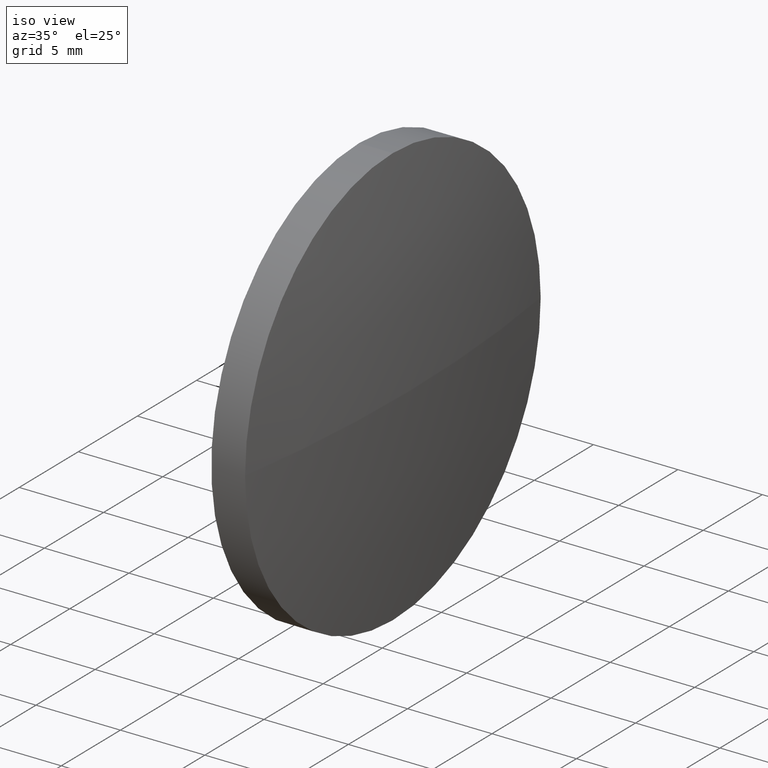
[diagram: clean part render]
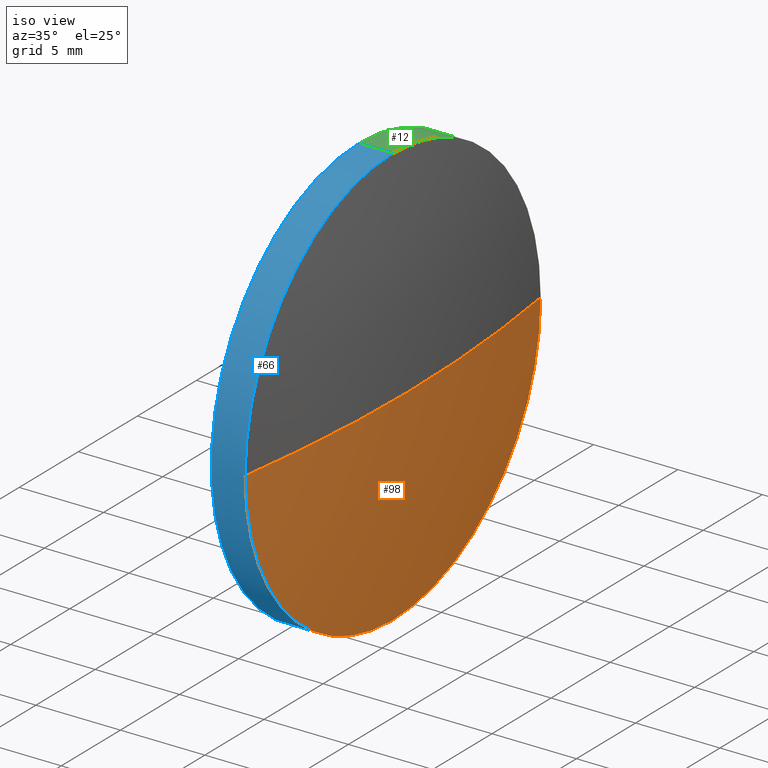
[diagram: same view with three faces highlighted in distinct colors, each labeled with its STEP entity id]
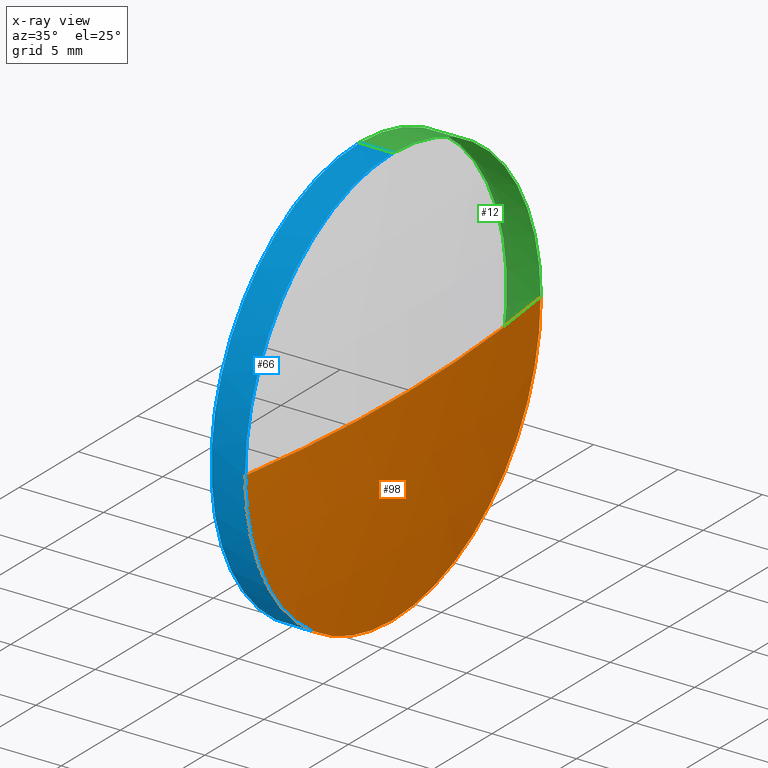
[diagram: x-ray of the same camera — body ghosted, the three highlighted faces saturated]
A machine part, iso view with three faces highlighted in distinct colors.
The next image is the same camera in x-ray (body ghosted, the three faces saturated) — at least one of them is partly hidden behind the body in this view.
Their STEP definitions:

[orange] entity #98 — the highlighted spherical surface has radius 82.7118 mm.
#1 = CARTESIAN_POINT ( 'NONE',  ( 579.2456314118285300, 209.4790640844908600, 0.0000000000000000000 ) ) ;
#4 = CARTESIAN_POINT ( 'NONE',  ( 580.1956314118284600, 196.9790640844907400, 0.0000000000000000000 ) ) ;
#5 = DIRECTION ( 'NONE',  ( 0.0000000000000000000, 1.000000000000000000, 0.0000000000000000000 ) ) ;
#7 = AXIS2_PLACEMENT_3D ( 'NONE', #159, #76, #172 ) ;
#8 = CIRCLE ( 'NONE', #183, 12.49999999999998400 ) ;
#14 = SPHERICAL_SURFACE ( 'NONE', #114, 82.71184210526288900 ) ;
#21 = VERTEX_POINT ( 'NONE', #1 ) ;
#24 = EDGE_CURVE ( 'NONE', #56, #21, #28, .T. ) ;
#28 = CIRCLE ( 'NONE', #7, 82.71184210526288900 ) ;
#32 = CARTESIAN_POINT ( 'NONE',  ( 579.2456314118285300, 184.4790640844908300, -1.530808498934181500E-015 ) ) ;
#42 = CIRCLE ( 'NONE', #145, 12.49999999999998400 ) ;
#44 = DIRECTION ( 'NONE',  ( 0.0000000000000000000, 0.0000000000000000000, 1.000000000000000000 ) ) ;
#53 = EDGE_CURVE ( 'NONE', #165, #75, #8, .T. ) ;
#56 = VERTEX_POINT ( 'NONE', #4 ) ;
#57 = ORIENTED_EDGE ( 'NONE', *, *, #106, .T. ) ;
#59 = CARTESIAN_POINT ( 'NONE',  ( 579.2456314118285300, 196.9790640844909100, 0.0000000000000000000 ) ) ;
#68 = CARTESIAN_POINT ( 'NONE',  ( 579.2456314118285300, 196.9790640844909100, 0.0000000000000000000 ) ) ;
#75 = VERTEX_POINT ( 'NONE', #32 ) ;
#76 = DIRECTION ( 'NONE',  ( -0.0000000000000000000, 0.0000000000000000000, 1.000000000000000000 ) ) ;
#78 = DIRECTION ( 'NONE',  ( -0.0000000000000000000, 0.0000000000000000000, -1.000000000000000000 ) ) ;
#98 = ADVANCED_FACE ( 'NONE', ( #164 ), #14, .T. ) ;
#99 = ORIENTED_EDGE ( 'NONE', *, *, #126, .F. ) ;
#101 = CIRCLE ( 'NONE', #129, 82.71184210526291700 ) ;
#106 = EDGE_CURVE ( 'NONE', #56, #75, #101, .T. ) ;
#107 = EDGE_LOOP ( 'NONE', ( #116, #57, #136, #99 ) ) ;
#112 = CARTESIAN_POINT ( 'NONE',  ( 497.4837893065656000, 196.9790640844907400, 0.0000000000000000000 ) ) ;
#114 = AXIS2_PLACEMENT_3D ( 'NONE', #161, #78, #5 ) ;
#116 = ORIENTED_EDGE ( 'NONE', *, *, #24, .F. ) ;
#126 = EDGE_CURVE ( 'NONE', #21, #165, #42, .T. ) ;
#127 = DIRECTION ( 'NONE',  ( 0.0000000000000000000, 1.224646799147353200E-016, -1.000000000000000000 ) ) ;
#129 = AXIS2_PLACEMENT_3D ( 'NONE', #112, #127, #152 ) ;
#134 = CARTESIAN_POINT ( 'NONE',  ( 579.2456314118285300, 196.9790640844909100, -12.49999999999998400 ) ) ;
#136 = ORIENTED_EDGE ( 'NONE', *, *, #53, .F. ) ;
#145 = AXIS2_PLACEMENT_3D ( 'NONE', #68, #182, #44 ) ;
#152 = DIRECTION ( 'NONE',  ( 0.0000000000000000000, 1.000000000000000000, 1.224646799147352700E-016 ) ) ;
#157 = DIRECTION ( 'NONE',  ( 0.0000000000000000000, 0.0000000000000000000, 1.000000000000000000 ) ) ;
#159 = CARTESIAN_POINT ( 'NONE',  ( 497.4837893065656000, 196.9790640844907400, 0.0000000000000000000 ) ) ;
#160 = DIRECTION ( 'NONE',  ( -1.000000000000000000, -0.0000000000000000000, -0.0000000000000000000 ) ) ;
#161 = CARTESIAN_POINT ( 'NONE',  ( 497.4837893065656000, 196.9790640844907400, 0.0000000000000000000 ) ) ;
#164 = FACE_OUTER_BOUND ( 'NONE', #107, .T. ) ;
#165 = VERTEX_POINT ( 'NONE', #134 ) ;
#172 = DIRECTION ( 'NONE',  ( 1.000000000000000000, 0.0000000000000000000, 0.0000000000000000000 ) ) ;
#182 = DIRECTION ( 'NONE',  ( -1.000000000000000000, -0.0000000000000000000, -0.0000000000000000000 ) ) ;
#183 = AXIS2_PLACEMENT_3D ( 'NONE', #59, #160, #157 ) ;

[blue] entity #66 — the highlighted cylindrical surface (partial cylindrical patch) has radius 12.5 mm, axis along (-1, -0, -0).
#8 = CIRCLE ( 'NONE', #183, 12.49999999999998400 ) ;
#17 = CIRCLE ( 'NONE', #27, 12.49999999999998400 ) ;
#18 = EDGE_CURVE ( 'NONE', #63, #94, #50, .T. ) ;
#20 = DIRECTION ( 'NONE',  ( 0.0000000000000000000, 0.0000000000000000000, 1.000000000000000000 ) ) ;
#27 = AXIS2_PLACEMENT_3D ( 'NONE', #121, #60, #20 ) ;
#29 = LINE ( 'NONE', #135, #80 ) ;
#30 = DIRECTION ( 'NONE',  ( 0.0000000000000000000, 0.0000000000000000000, 1.000000000000000000 ) ) ;
#32 = CARTESIAN_POINT ( 'NONE',  ( 579.2456314118285300, 184.4790640844908300, -1.530808498934181500E-015 ) ) ;
#33 = DIRECTION ( 'NONE',  ( -1.000000000000000000, -0.0000000000000000000, -0.0000000000000000000 ) ) ;
#34 = EDGE_CURVE ( 'NONE', #165, #63, #93, .T. ) ;
#38 = ORIENTED_EDGE ( 'NONE', *, *, #138, .T. ) ;
#45 = ORIENTED_EDGE ( 'NONE', *, *, #18, .F. ) ;
#47 = CARTESIAN_POINT ( 'NONE',  ( 574.8800155090675600, 196.9790640844909100, -12.49999999999998400 ) ) ;
#48 = CYLINDRICAL_SURFACE ( 'NONE', #62, 12.49999999999998400 ) ;
#50 = CIRCLE ( 'NONE', #83, 12.49999999999998400 ) ;
#51 = CARTESIAN_POINT ( 'NONE',  ( 577.2456314118285300, 196.9790640844909100, 12.49999999999998400 ) ) ;
#52 = VERTEX_POINT ( 'NONE', #140 ) ;
#53 = EDGE_CURVE ( 'NONE', #165, #75, #8, .T. ) ;
#58 = CARTESIAN_POINT ( 'NONE',  ( 577.2456314118285300, 196.9790640844909100, 0.0000000000000000000 ) ) ;
#59 = CARTESIAN_POINT ( 'NONE',  ( 579.2456314118285300, 196.9790640844909100, 0.0000000000000000000 ) ) ;
#60 = DIRECTION ( 'NONE',  ( -1.000000000000000000, -0.0000000000000000000, -0.0000000000000000000 ) ) ;
#62 = AXIS2_PLACEMENT_3D ( 'NONE', #92, #130, #117 ) ;
#63 = VERTEX_POINT ( 'NONE', #143 ) ;
#66 = ADVANCED_FACE ( 'NONE', ( #102 ), #48, .T. ) ;
#69 = ORIENTED_EDGE ( 'NONE', *, *, #74, .T. ) ;
#74 = EDGE_CURVE ( 'NONE', #75, #52, #17, .T. ) ;
#75 = VERTEX_POINT ( 'NONE', #32 ) ;
#80 = VECTOR ( 'NONE', #184, 1000.000000000000000 ) ;
#82 = VECTOR ( 'NONE', #33, 1000.000000000000000 ) ;
#83 = AXIS2_PLACEMENT_3D ( 'NONE', #58, #171, #30 ) ;
#89 = ORIENTED_EDGE ( 'NONE', *, *, #34, .F. ) ;
#92 = CARTESIAN_POINT ( 'NONE',  ( 574.8800155090675600, 196.9790640844909100, 0.0000000000000000000 ) ) ;
#93 = LINE ( 'NONE', #47, #82 ) ;
#94 = VERTEX_POINT ( 'NONE', #51 ) ;
#102 = FACE_OUTER_BOUND ( 'NONE', #128, .T. ) ;
#117 = DIRECTION ( 'NONE',  ( 0.0000000000000000000, 0.0000000000000000000, 1.000000000000000000 ) ) ;
#119 = ORIENTED_EDGE ( 'NONE', *, *, #53, .T. ) ;
#121 = CARTESIAN_POINT ( 'NONE',  ( 579.2456314118285300, 196.9790640844909100, 0.0000000000000000000 ) ) ;
#128 = EDGE_LOOP ( 'NONE', ( #89, #119, #69, #38, #45 ) ) ;
#130 = DIRECTION ( 'NONE',  ( -1.000000000000000000, -0.0000000000000000000, -0.0000000000000000000 ) ) ;
#134 = CARTESIAN_POINT ( 'NONE',  ( 579.2456314118285300, 196.9790640844909100, -12.49999999999998400 ) ) ;
#135 = CARTESIAN_POINT ( 'NONE',  ( 574.8800155090675600, 196.9790640844909100, 12.49999999999998400 ) ) ;
#138 = EDGE_CURVE ( 'NONE', #52, #94, #29, .T. ) ;
#140 = CARTESIAN_POINT ( 'NONE',  ( 579.2456314118285300, 196.9790640844909100, 12.49999999999998400 ) ) ;
#143 = CARTESIAN_POINT ( 'NONE',  ( 577.2456314118285300, 196.9790640844909100, -12.49999999999998400 ) ) ;
#157 = DIRECTION ( 'NONE',  ( 0.0000000000000000000, 0.0000000000000000000, 1.000000000000000000 ) ) ;
#160 = DIRECTION ( 'NONE',  ( -1.000000000000000000, -0.0000000000000000000, -0.0000000000000000000 ) ) ;
#165 = VERTEX_POINT ( 'NONE', #134 ) ;
#171 = DIRECTION ( 'NONE',  ( -1.000000000000000000, -0.0000000000000000000, -0.0000000000000000000 ) ) ;
#183 = AXIS2_PLACEMENT_3D ( 'NONE', #59, #160, #157 ) ;
#184 = DIRECTION ( 'NONE',  ( -1.000000000000000000, -0.0000000000000000000, -0.0000000000000000000 ) ) ;

[green] entity #12 — the highlighted cylindrical surface (partial cylindrical patch) has radius 12.5 mm, axis along (-1, -0, -0).
#1 = CARTESIAN_POINT ( 'NONE',  ( 579.2456314118285300, 209.4790640844908600, 0.0000000000000000000 ) ) ;
#10 = EDGE_CURVE ( 'NONE', #94, #63, #162, .T. ) ;
#11 = CARTESIAN_POINT ( 'NONE',  ( 579.2456314118285300, 196.9790640844909100, 0.0000000000000000000 ) ) ;
#12 = ADVANCED_FACE ( 'NONE', ( #125 ), #122, .T. ) ;
#16 = AXIS2_PLACEMENT_3D ( 'NONE', #174, #73, #103 ) ;
#21 = VERTEX_POINT ( 'NONE', #1 ) ;
#25 = AXIS2_PLACEMENT_3D ( 'NONE', #11, #179, #85 ) ;
#29 = LINE ( 'NONE', #135, #80 ) ;
#33 = DIRECTION ( 'NONE',  ( -1.000000000000000000, -0.0000000000000000000, -0.0000000000000000000 ) ) ;
#34 = EDGE_CURVE ( 'NONE', #165, #63, #93, .T. ) ;
#42 = CIRCLE ( 'NONE', #145, 12.49999999999998400 ) ;
#44 = DIRECTION ( 'NONE',  ( 0.0000000000000000000, 0.0000000000000000000, 1.000000000000000000 ) ) ;
#47 = CARTESIAN_POINT ( 'NONE',  ( 574.8800155090675600, 196.9790640844909100, -12.49999999999998400 ) ) ;
#51 = CARTESIAN_POINT ( 'NONE',  ( 577.2456314118285300, 196.9790640844909100, 12.49999999999998400 ) ) ;
#52 = VERTEX_POINT ( 'NONE', #140 ) ;
#63 = VERTEX_POINT ( 'NONE', #143 ) ;
#68 = CARTESIAN_POINT ( 'NONE',  ( 579.2456314118285300, 196.9790640844909100, 0.0000000000000000000 ) ) ;
#72 = DIRECTION ( 'NONE',  ( -1.000000000000000000, -0.0000000000000000000, -0.0000000000000000000 ) ) ;
#73 = DIRECTION ( 'NONE',  ( -1.000000000000000000, -0.0000000000000000000, -0.0000000000000000000 ) ) ;
#77 = CARTESIAN_POINT ( 'NONE',  ( 577.2456314118285300, 196.9790640844909100, 0.0000000000000000000 ) ) ;
#80 = VECTOR ( 'NONE', #184, 1000.000000000000000 ) ;
#81 = CIRCLE ( 'NONE', #25, 12.49999999999998400 ) ;
#82 = VECTOR ( 'NONE', #33, 1000.000000000000000 ) ;
#84 = ORIENTED_EDGE ( 'NONE', *, *, #138, .F. ) ;
#85 = DIRECTION ( 'NONE',  ( 0.0000000000000000000, 0.0000000000000000000, 1.000000000000000000 ) ) ;
#93 = LINE ( 'NONE', #47, #82 ) ;
#94 = VERTEX_POINT ( 'NONE', #51 ) ;
#103 = DIRECTION ( 'NONE',  ( 0.0000000000000000000, 0.0000000000000000000, 1.000000000000000000 ) ) ;
#109 = ORIENTED_EDGE ( 'NONE', *, *, #126, .T. ) ;
#118 = DIRECTION ( 'NONE',  ( 0.0000000000000000000, 0.0000000000000000000, 1.000000000000000000 ) ) ;
#122 = CYLINDRICAL_SURFACE ( 'NONE', #16, 12.49999999999998400 ) ;
#125 = FACE_OUTER_BOUND ( 'NONE', #148, .T. ) ;
#126 = EDGE_CURVE ( 'NONE', #21, #165, #42, .T. ) ;
#134 = CARTESIAN_POINT ( 'NONE',  ( 579.2456314118285300, 196.9790640844909100, -12.49999999999998400 ) ) ;
#135 = CARTESIAN_POINT ( 'NONE',  ( 574.8800155090675600, 196.9790640844909100, 12.49999999999998400 ) ) ;
#138 = EDGE_CURVE ( 'NONE', #52, #94, #29, .T. ) ;
#140 = CARTESIAN_POINT ( 'NONE',  ( 579.2456314118285300, 196.9790640844909100, 12.49999999999998400 ) ) ;
#143 = CARTESIAN_POINT ( 'NONE',  ( 577.2456314118285300, 196.9790640844909100, -12.49999999999998400 ) ) ;
#145 = AXIS2_PLACEMENT_3D ( 'NONE', #68, #182, #44 ) ;
#148 = EDGE_LOOP ( 'NONE', ( #109, #185, #170, #84, #186 ) ) ;
#162 = CIRCLE ( 'NONE', #181, 12.49999999999998400 ) ;
#163 = EDGE_CURVE ( 'NONE', #52, #21, #81, .T. ) ;
#165 = VERTEX_POINT ( 'NONE', #134 ) ;
#170 = ORIENTED_EDGE ( 'NONE', *, *, #10, .F. ) ;
#174 = CARTESIAN_POINT ( 'NONE',  ( 574.8800155090675600, 196.9790640844909100, 0.0000000000000000000 ) ) ;
#179 = DIRECTION ( 'NONE',  ( -1.000000000000000000, -0.0000000000000000000, -0.0000000000000000000 ) ) ;
#181 = AXIS2_PLACEMENT_3D ( 'NONE', #77, #72, #118 ) ;
#182 = DIRECTION ( 'NONE',  ( -1.000000000000000000, -0.0000000000000000000, -0.0000000000000000000 ) ) ;
#184 = DIRECTION ( 'NONE',  ( -1.000000000000000000, -0.0000000000000000000, -0.0000000000000000000 ) ) ;
#185 = ORIENTED_EDGE ( 'NONE', *, *, #34, .T. ) ;
#186 = ORIENTED_EDGE ( 'NONE', *, *, #163, .T. ) ;